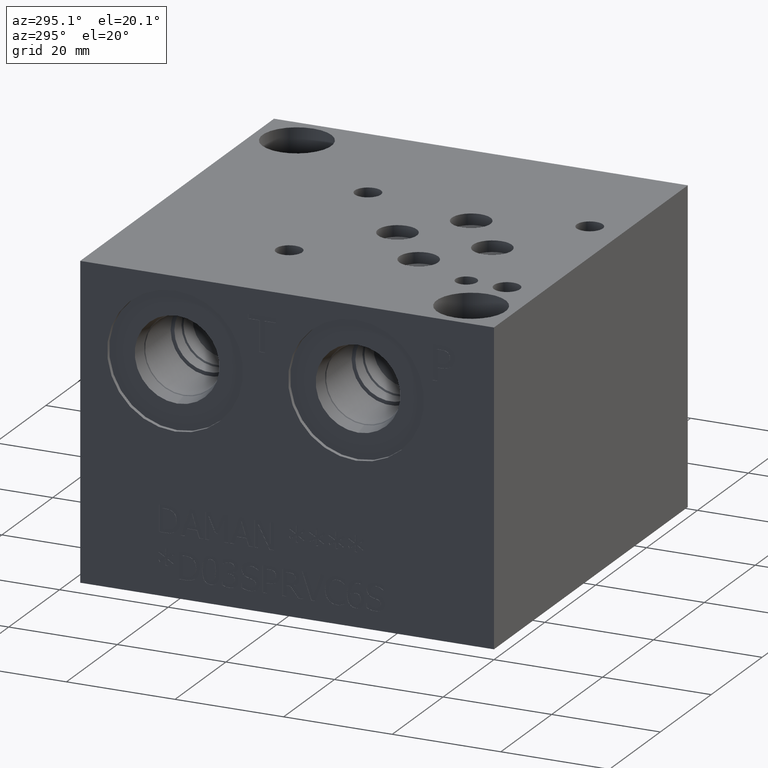
[diagram: clean part render]
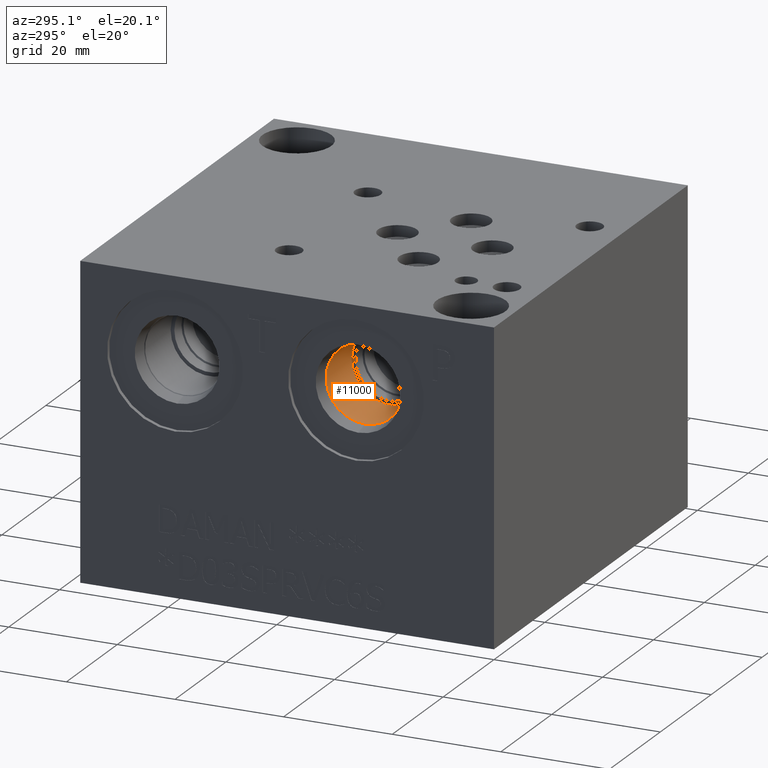
[diagram: same view with one face highlighted and labeled with its STEP entity id]
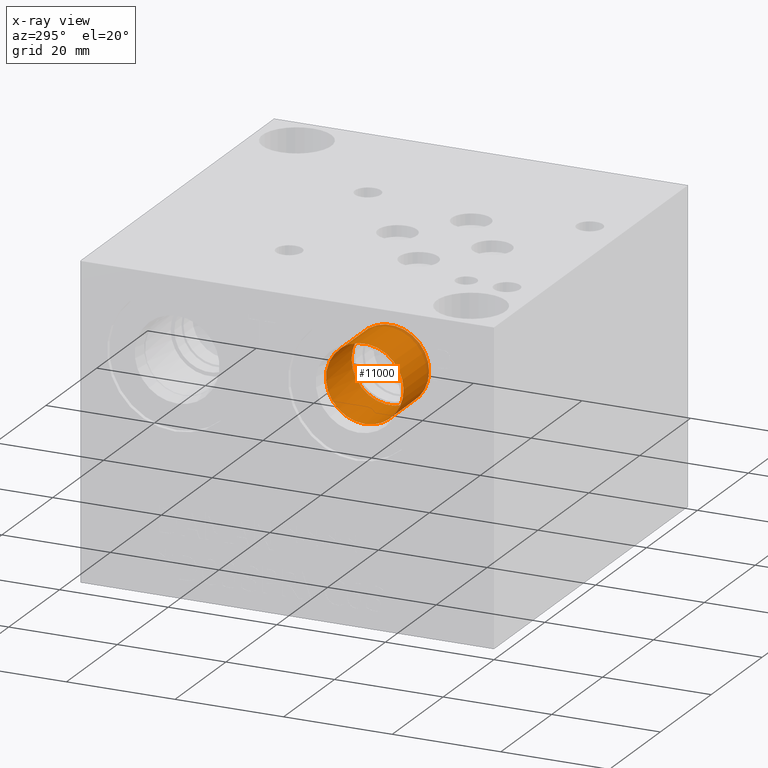
[diagram: x-ray of the same camera — body ghosted, the highlighted face saturated]
A machine part, auxiliary view. The second image highlights one B-rep face of the part: STEP entity #11000.
The next image is the same camera in x-ray: the body ghosted, the highlighted face saturated — about 5% of this face is hidden behind the body in this view.
In plain terms, the highlighted cylindrical surface (bore or boss wall) has radius 7.1374 mm, axis along (-1, 0, 0).
Its self-contained STEP definition (entity closure, byte-faithful):
#85=CYLINDRICAL_SURFACE('',#11553,7.1374);
#238=CIRCLE('',#11550,7.1374);
#239=CIRCLE('',#11551,7.1374);
#241=CIRCLE('',#11554,7.1374);
#242=CIRCLE('',#11555,7.1374);
#1218=FACE_OUTER_BOUND('',#1840,.T.);
#1840=EDGE_LOOP('',(#9645,#9646,#9647,#9648,#9649,#9650));
#2873=LINE('',#18946,#3876);
#3876=VECTOR('',#13629,7.1374);
#5204=VERTEX_POINT('',#18936);
#5205=VERTEX_POINT('',#18937);
#5207=VERTEX_POINT('',#18943);
#5208=VERTEX_POINT('',#18944);
#6714=EDGE_CURVE('',#5204,#5205,#238,.T.);
#6715=EDGE_CURVE('',#5205,#5204,#239,.T.);
#6717=EDGE_CURVE('',#5207,#5208,#241,.T.);
#6718=EDGE_CURVE('',#5207,#5205,#2873,.T.);
#6719=EDGE_CURVE('',#5208,#5207,#242,.T.);
#9645=ORIENTED_EDGE('',*,*,#6717,.F.);
#9646=ORIENTED_EDGE('',*,*,#6718,.T.);
#9647=ORIENTED_EDGE('',*,*,#6714,.F.);
#9648=ORIENTED_EDGE('',*,*,#6715,.F.);
#9649=ORIENTED_EDGE('',*,*,#6718,.F.);
#9650=ORIENTED_EDGE('',*,*,#6719,.F.);
#11000=ADVANCED_FACE('',(#1218),#85,.F.);
#11550=AXIS2_PLACEMENT_3D('',#18938,#13619,#13620);
#11551=AXIS2_PLACEMENT_3D('',#18939,#13621,#13622);
#11553=AXIS2_PLACEMENT_3D('',#18942,#13625,#13626);
#11554=AXIS2_PLACEMENT_3D('',#18945,#13627,#13628);
#11555=AXIS2_PLACEMENT_3D('',#18947,#13630,#13631);
#13619=DIRECTION('center_axis',(-1.,0.,0.));
#13620=DIRECTION('ref_axis',(0.,1.,0.));
#13621=DIRECTION('center_axis',(-1.,0.,0.));
#13622=DIRECTION('ref_axis',(0.,1.,0.));
#13625=DIRECTION('center_axis',(-1.,0.,0.));
#13626=DIRECTION('ref_axis',(0.,1.,0.));
#13627=DIRECTION('center_axis',(1.,0.,0.));
#13628=DIRECTION('ref_axis',(0.,1.,0.));
#13629=DIRECTION('',(1.,0.,0.));
#13630=DIRECTION('center_axis',(1.,0.,0.));
#13631=DIRECTION('ref_axis',(0.,1.,0.));
#18936=CARTESIAN_POINT('',(13.4874,32.5374,42.0624));
#18937=CARTESIAN_POINT('',(13.4874,18.2626,42.0624));
#18938=CARTESIAN_POINT('Origin',(13.4874,25.4,42.0624));
#18939=CARTESIAN_POINT('Origin',(13.4874,25.4,42.0624));
#18942=CARTESIAN_POINT('Origin',(6.7437,25.4,42.0624));
#18943=CARTESIAN_POINT('',(3.429,18.2626,42.0624));
#18944=CARTESIAN_POINT('',(3.42900000000001,25.4,34.925));
#18945=CARTESIAN_POINT('Origin',(3.429,25.4,42.0624));
#18946=CARTESIAN_POINT('',(6.7437,18.2626,42.0624));
#18947=CARTESIAN_POINT('Origin',(3.429,25.4,42.0624));